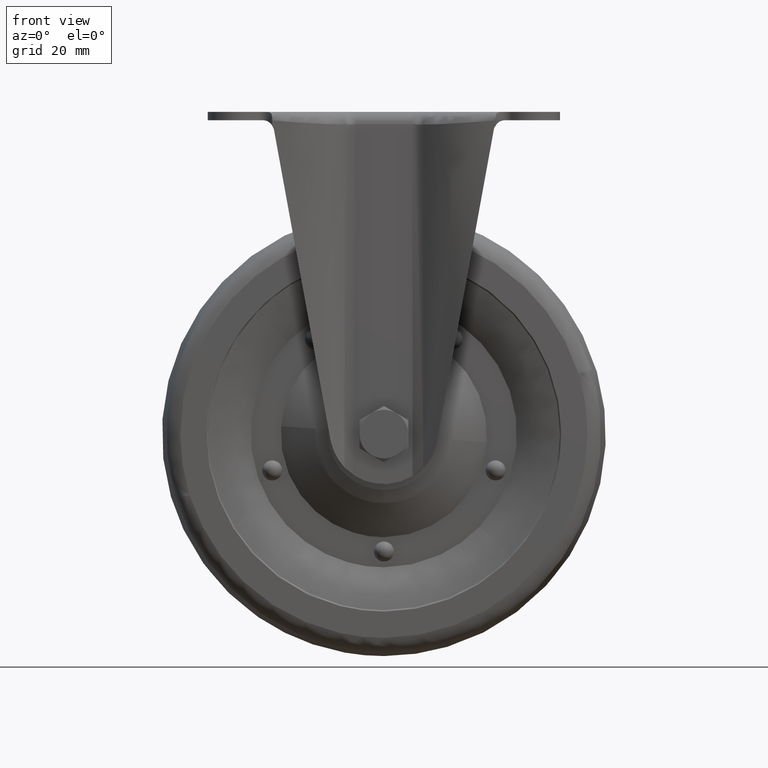
[diagram: clean part render]
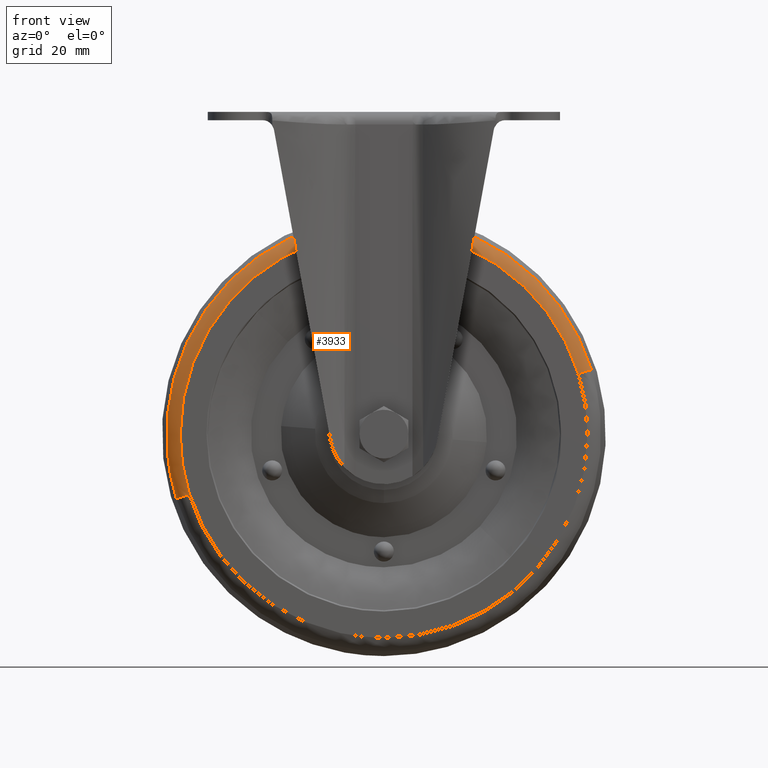
[diagram: same view with one face highlighted and labeled with its STEP entity id]
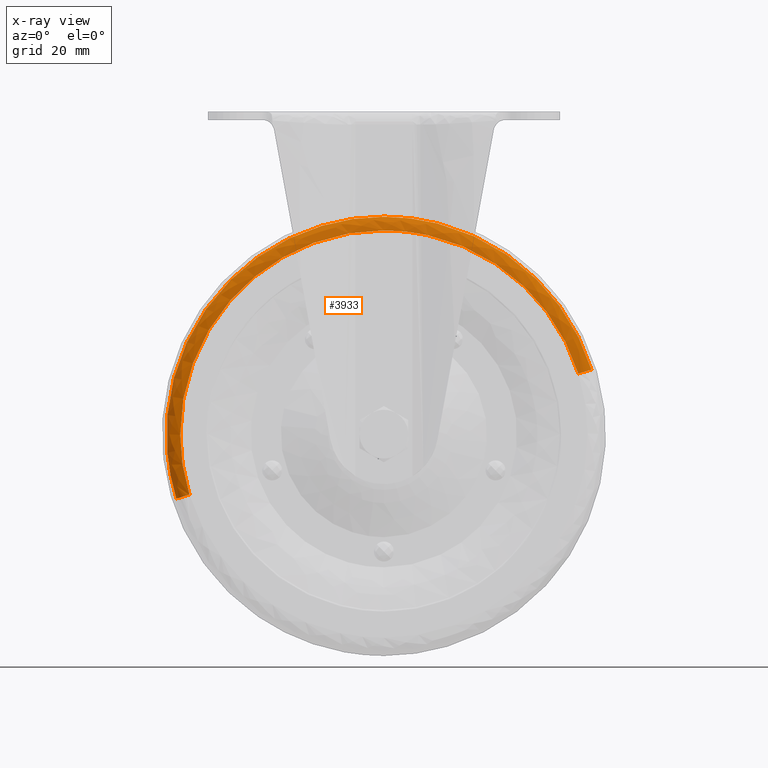
[diagram: x-ray of the same camera — body ghosted, the highlighted face saturated]
A machine part, front view. The second image highlights one B-rep face of the part: STEP entity #3933.
The next image is the same camera in x-ray: the body ghosted, the highlighted face saturated — about 0% of this face is hidden behind the body in this view.
In plain terms, the highlighted face is a freeform B-spline surface patch.
Its self-contained STEP definition (entity closure, byte-faithful):
#3642=CARTESIAN_POINT('',(-72.462638396262861,-10.500000000548219,-135.041853536071390));
#3643=VERTEX_POINT('',#3642);
#3657=CARTESIAN_POINT('',(-21.629505322031370,-10.500000000029249,-39.759821118312530));
#3658=VERTEX_POINT('',#3657);
#3659=CARTESIAN_POINT('',(-21.629505322031367,-10.500000000029248,-39.759821118312530));
#3660=CARTESIAN_POINT('',(-75.887872049511813,-10.500000000246407,-55.893705443876478));
#3661=CARTESIAN_POINT('',(-75.887872049450237,-10.500000000469200,-112.499999999955310));
#3662=CARTESIAN_POINT('',(-75.887872049437703,-10.500000000514587,-124.031158819471630));
#3663=CARTESIAN_POINT('',(-72.462638396262861,-10.500000000548223,-135.041853536071410));
#3671=(BOUNDED_CURVE()B_SPLINE_CURVE(2,(#3659,#3660,#3661,#3662,#3663),.UNSPECIFIED.,.F.,.U.)B_SPLINE_CURVE_WITH_KNOTS((3,2,3),(0.548526662064624,0.750000000000000,0.800541362318724),.UNSPECIFIED.)CURVE()GEOMETRIC_REPRESENTATION_ITEM()RATIONAL_B_SPLINE_CURVE((0.908365862590259,0.763959302188070,1.0,0.940787110829008,0.905515822342253))REPRESENTATION_ITEM(''));
#3672=EDGE_CURVE('',#3658,#3643,#3671,.T.);
#3721=CARTESIAN_POINT('',(0.0,-10.499999999999860,-36.612127950406922));
#3722=VERTEX_POINT('',#3721);
#3723=CARTESIAN_POINT('',(0.0,-10.499999999999860,-36.612127950406922));
#3724=CARTESIAN_POINT('',(-11.043791007752478,-10.500000000009477,-36.612127950403476));
#3725=CARTESIAN_POINT('',(-21.629505322031367,-10.500000000029248,-39.759821118312530));
#3733=(BOUNDED_CURVE()B_SPLINE_CURVE(2,(#3723,#3724,#3725),.UNSPECIFIED.,.F.,.U.)B_SPLINE_CURVE_WITH_KNOTS((3,3),(0.500000000000000,0.548526662064624),.UNSPECIFIED.)CURVE()GEOMETRIC_REPRESENTATION_ITEM()RATIONAL_B_SPLINE_CURVE((1.0,0.943147478998478,0.908365862590259))REPRESENTATION_ITEM(''));
#3734=EDGE_CURVE('',#3722,#3658,#3733,.T.);
#3736=CARTESIAN_POINT('',(72.462638396262861,-10.500000000548230,-89.958146463928614));
#3737=VERTEX_POINT('',#3736);
#3738=CARTESIAN_POINT('',(72.462638396262861,-10.500000000548225,-89.958146463928614));
#3739=CARTESIAN_POINT('',(55.867629400299272,-10.500000000274042,-36.612127950432523));
#3740=CARTESIAN_POINT('',(0.0,-10.499999999999860,-36.612127950406922));
#3748=(BOUNDED_CURVE()B_SPLINE_CURVE(2,(#3738,#3739,#3740),.UNSPECIFIED.,.F.,.U.)B_SPLINE_CURVE_WITH_KNOTS((3,3),(0.300541362318724,0.500000000000000),.UNSPECIFIED.)CURVE()GEOMETRIC_REPRESENTATION_ITEM()RATIONAL_B_SPLINE_CURVE((0.905515822342253,0.766319670357539,1.0))REPRESENTATION_ITEM(''));
#3749=EDGE_CURVE('',#3737,#3722,#3748,.T.);
#3804=CARTESIAN_POINT('',(67.908224801424808,-14.0,-91.374944505515955));
#3805=VERTEX_POINT('',#3804);
#3806=CARTESIAN_POINT('',(72.462638396262861,-10.500000000548225,-89.958146463928614));
#3807=CARTESIAN_POINT('',(71.411619874050601,-13.999999991164337,-90.285099858133137));
#3808=CARTESIAN_POINT('',(67.908224801424808,-14.000000000000004,-91.374944505515955));
#3816=(BOUNDED_CURVE()B_SPLINE_CURVE(2,(#3806,#3807,#3808),.UNSPECIFIED.,.F.,.U.)B_SPLINE_CURVE_WITH_KNOTS((3,3),(-1.686452685999935,-0.324444359800725),.UNSPECIFIED.)CURVE()GEOMETRIC_REPRESENTATION_ITEM()RATIONAL_B_SPLINE_CURVE((0.900657974378919,0.725008790520070,0.897869643529036))REPRESENTATION_ITEM(''));
#3817=EDGE_CURVE('',#3737,#3805,#3816,.T.);
#3836=CARTESIAN_POINT('',(-67.908224801424808,-14.0,-133.625055494484000));
#3837=VERTEX_POINT('',#3836);
#3851=CARTESIAN_POINT('',(-72.462638396262861,-10.500000000548223,-135.041853536071300));
#3852=CARTESIAN_POINT('',(-71.411619874050643,-13.999999991164346,-134.714900141866850));
#3853=CARTESIAN_POINT('',(-67.908224801424808,-14.000000000000002,-133.625055494483950));
#3861=(BOUNDED_CURVE()B_SPLINE_CURVE(2,(#3851,#3852,#3853),.UNSPECIFIED.,.F.,.U.)B_SPLINE_CURVE_WITH_KNOTS((3,3),(-1.686452685999934,-0.324444359800722),.UNSPECIFIED.)CURVE()GEOMETRIC_REPRESENTATION_ITEM()RATIONAL_B_SPLINE_CURVE((0.900657974378919,0.725008790520070,0.897869643529037))REPRESENTATION_ITEM(''));
#3862=EDGE_CURVE('',#3643,#3837,#3861,.T.);
#3867=CARTESIAN_POINT('',(73.169357159183278,-10.218933965876982,-91.962486868147778));
#3868=CARTESIAN_POINT('',(72.855765909419944,-10.218933965876982,-90.954422056642130));
#3869=CARTESIAN_POINT('',(49.973047740875060,-10.218933965876980,-17.396046321604683));
#3870=CARTESIAN_POINT('',(-22.565452968760127,-10.218933965876980,-39.961499290364813));
#3871=CARTESIAN_POINT('',(-95.103953678395314,-10.218933965876980,-62.526952259124904));
#3872=CARTESIAN_POINT('',(-72.221235509790901,-10.218933965876980,-136.085327994353860));
#3873=CARTESIAN_POINT('',(-71.907644259969373,-10.218933965876982,-137.093392806046520));
#3874=CARTESIAN_POINT('',(72.197276832351605,-14.233925615775071,-92.235334864257510));
#3875=CARTESIAN_POINT('',(71.887851751274141,-14.233925615775066,-91.240662543946002));
#3876=CARTESIAN_POINT('',(49.309138442409569,-14.233925615775069,-18.659535382654521));
#3877=CARTESIAN_POINT('',(-22.265663087467946,-14.233925615775076,-40.925198470122467));
#3878=CARTESIAN_POINT('',(-93.840464617345447,-14.233925615775069,-63.190861557590395));
#3879=CARTESIAN_POINT('',(-71.261751308422163,-14.233925615775069,-135.771988719070830));
#3880=CARTESIAN_POINT('',(-70.952326227287259,-14.233925615775073,-136.766661039566910));
#3881=CARTESIAN_POINT('',(68.216704201477640,-13.991413826084798,-93.352620376292450));
#3882=CARTESIAN_POINT('',(67.924339168411450,-13.991413826084797,-92.412788980578611));
#3883=CARTESIAN_POINT('',(46.590495641080544,-13.991413826084800,-23.833397909238382));
#3884=CARTESIAN_POINT('',(-21.038053224840525,-13.991413826084797,-44.871451134078910));
#3885=CARTESIAN_POINT('',(-88.666602090761614,-13.991413826084800,-65.909504358919435));
#3886=CARTESIAN_POINT('',(-67.332758563375251,-13.991413826084798,-134.488895430438220));
#3887=CARTESIAN_POINT('',(-67.040393530254804,-13.991413826084802,-135.428726826326430));
#3895=(BOUNDED_SURFACE()B_SPLINE_SURFACE(2,2,((#3867,#3874,#3881),(#3868,#3875,#3882),(#3869,#3876,#3883),(#3870,#3877,#3884),(#3871,#3878,#3885),(#3872,#3879,#3886),(#3873,#3880,#3887)),.UNSPECIFIED.,.F.,.F.,.U.)B_SPLINE_SURFACE_WITH_KNOTS((3,1,2,1,3),(3,3),(0.0,2.517335549094707,128.384113003329700,254.250890457564710,256.768226007134790),(0.0,7.207009329471227),.UNSPECIFIED.)GEOMETRIC_REPRESENTATION_ITEM()RATIONAL_B_SPLINE_SURFACE(((0.929842475414400,0.715011059749140,0.926739678157387),(0.924458659627520,0.710871124294422,0.921373827659572),(0.649884054497683,0.499734416104585,0.647715452272050),(0.919074843840639,0.706731188839703,0.916007977161756),(0.649884054497683,0.499734416104585,0.647715452272050),(0.924458659628536,0.710871124295203,0.921373827660585),(0.929842475416434,0.715011059750704,0.926739678159414)))REPRESENTATION_ITEM('')SURFACE());
#3896=ORIENTED_EDGE('',*,*,#3734,.T.);
#3897=ORIENTED_EDGE('',*,*,#3672,.T.);
#3898=ORIENTED_EDGE('',*,*,#3862,.T.);
#3899=CARTESIAN_POINT('',(0.0,-14.0,-41.381823957491598));
#3900=VERTEX_POINT('',#3899);
#3901=CARTESIAN_POINT('',(0.0,-14.0,-41.381823957491598));
#3902=CARTESIAN_POINT('',(-71.118176046740530,-13.999999999999996,-41.381823958808134));
#3903=CARTESIAN_POINT('',(-71.118176052489289,-14.0,-112.500000003104900));
#3904=CARTESIAN_POINT('',(-71.118176053362802,-14.000000000000004,-123.306403724644430));
#3905=CARTESIAN_POINT('',(-67.908224801424808,-14.0,-133.625055494483970));
#3913=(BOUNDED_CURVE()B_SPLINE_CURVE(2,(#3901,#3902,#3903,#3904,#3905),.UNSPECIFIED.,.F.,.U.)B_SPLINE_CURVE_WITH_KNOTS((3,2,3),(0.500000000000000,0.750000000000000,0.800541362319597),.UNSPECIFIED.)CURVE()GEOMETRIC_REPRESENTATION_ITEM()RATIONAL_B_SPLINE_CURVE((1.0,0.707106781186547,1.0,0.940787110827985,0.905515822341034))REPRESENTATION_ITEM(''));
#3914=EDGE_CURVE('',#3900,#3837,#3913,.T.);
#3915=ORIENTED_EDGE('',*,*,#3914,.F.);
#3916=CARTESIAN_POINT('',(67.908224801424808,-14.0,-91.374944505515955));
#3917=CARTESIAN_POINT('',(52.356243440203450,-14.000000000000005,-41.381823955703254));
#3918=CARTESIAN_POINT('',(0.0,-14.0,-41.381823957491598));
#3926=(BOUNDED_CURVE()B_SPLINE_CURVE(2,(#3916,#3917,#3918),.UNSPECIFIED.,.F.,.U.)B_SPLINE_CURVE_WITH_KNOTS((3,3),(0.300541362319597,0.500000000000000),.UNSPECIFIED.)CURVE()GEOMETRIC_REPRESENTATION_ITEM()RATIONAL_B_SPLINE_CURVE((0.905515822341034,0.766319670358563,1.0))REPRESENTATION_ITEM(''));
#3927=EDGE_CURVE('',#3805,#3900,#3926,.T.);
#3928=ORIENTED_EDGE('',*,*,#3927,.F.);
#3929=ORIENTED_EDGE('',*,*,#3817,.F.);
#3930=ORIENTED_EDGE('',*,*,#3749,.T.);
#3931=EDGE_LOOP('',(#3896,#3897,#3898,#3915,#3928,#3929,#3930));
#3932=FACE_OUTER_BOUND('',#3931,.T.);
#3933=ADVANCED_FACE('',(#3932),#3895,.T.);